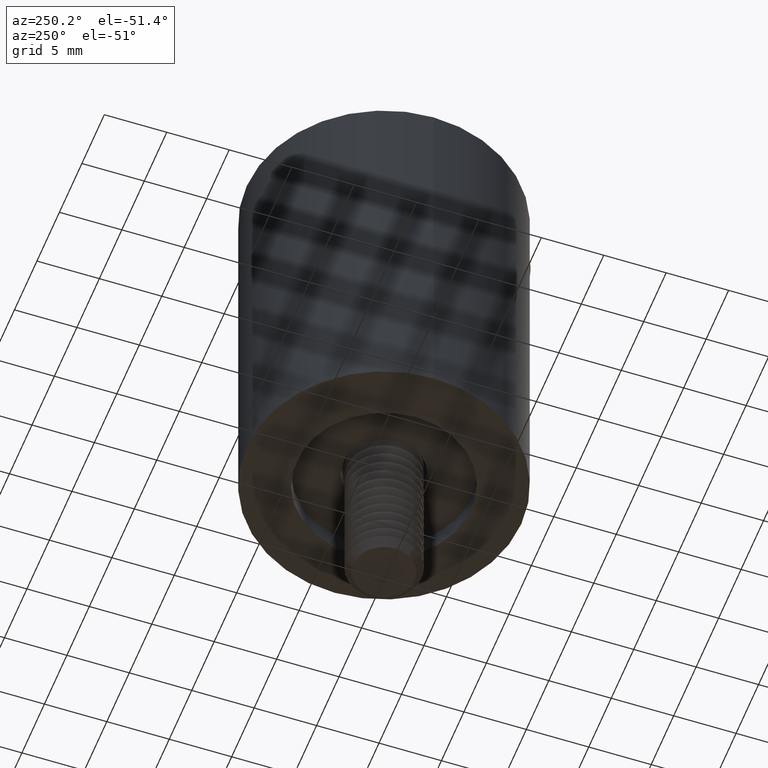
[diagram: clean part render]
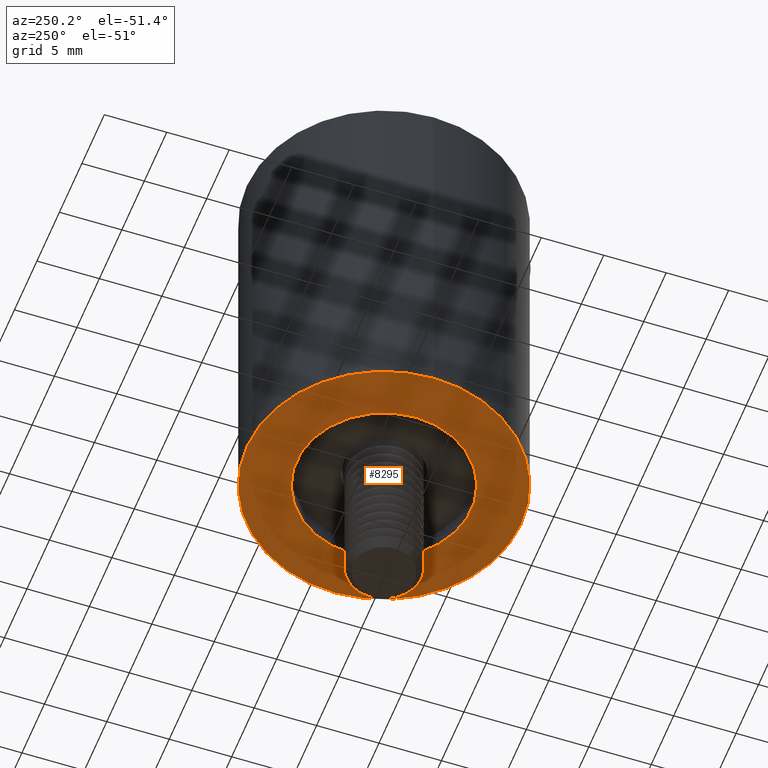
[diagram: same view with one face highlighted and labeled with its STEP entity id]
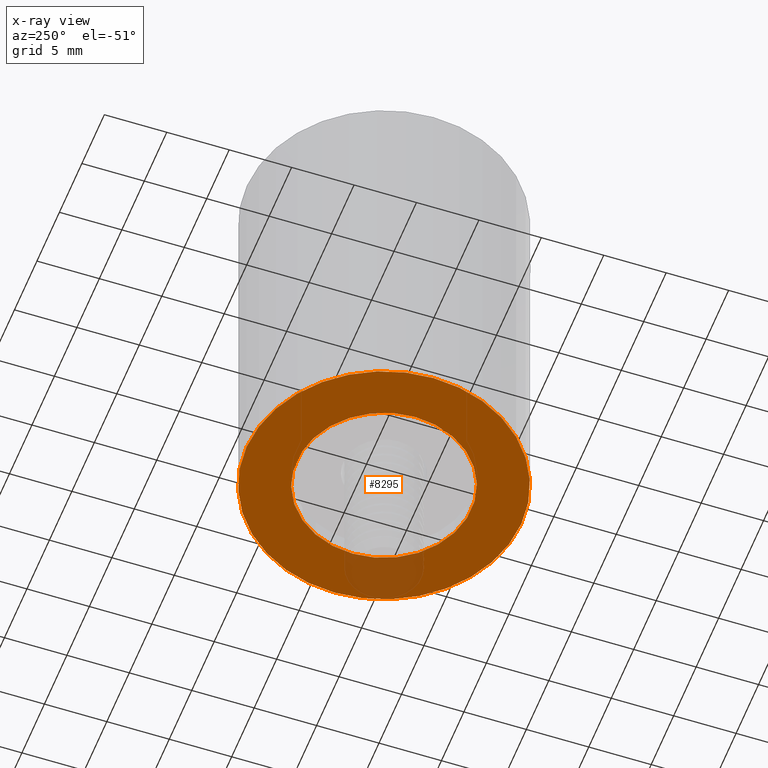
[diagram: x-ray of the same camera — body ghosted, the highlighted face saturated]
A machine part, auxiliary view. The second image highlights one B-rep face of the part: STEP entity #8295.
The next image is the same camera in x-ray: the body ghosted, the highlighted face saturated — about 9% of this face is hidden behind the body in this view.
In plain terms, the highlighted planar face has unit normal (0, 0, -1).
Its self-contained STEP definition (entity closure, byte-faithful):
#34 = DIRECTION ( 'NONE',  ( -1.000000000000000000, 0.000000000000000000, 0.000000000000000000 ) ) ;
#80 = PLANE ( 'NONE',  #8557 ) ;
#160 = DIRECTION ( 'NONE',  ( -1.000000000000000000, 0.000000000000000000, 0.000000000000000000 ) ) ;
#229 = DIRECTION ( 'NONE',  ( -0.000000000000000000, 0.000000000000000000, -1.000000000000000000 ) ) ;
#1234 = VERTEX_POINT ( 'NONE', #6656 ) ;
#1418 = VERTEX_POINT ( 'NONE', #16991 ) ;
#1471 = EDGE_LOOP ( 'NONE', ( #12914, #5791 ) ) ;
#2104 = DIRECTION ( 'NONE',  ( -1.000000000000000000, 0.000000000000000000, 0.000000000000000000 ) ) ;
#2699 = AXIS2_PLACEMENT_3D ( 'NONE', #5426, #12238, #2104 ) ;
#3367 = CIRCLE ( 'NONE', #8126, 6.999999999999999112 ) ;
#3567 = DIRECTION ( 'NONE',  ( -1.000000000000000000, 0.000000000000000000, 0.000000000000000000 ) ) ;
#3638 = CARTESIAN_POINT ( 'NONE',  ( 0.000000000000000000, 6.999999999999999112, 0.000000000000000000 ) ) ;
#3837 = CIRCLE ( 'NONE', #10111, 6.999999999999999112 ) ;
#5426 = CARTESIAN_POINT ( 'NONE',  ( 0.000000000000000000, 0.000000000000000000, 0.000000000000000000 ) ) ;
#5704 = CARTESIAN_POINT ( 'NONE',  ( -11.00000000000000000, 0.000000000000000000, 0.000000000000000000 ) ) ;
#5791 = ORIENTED_EDGE ( 'NONE', *, *, #16752, .F. ) ;
#6535 = AXIS2_PLACEMENT_3D ( 'NONE', #16805, #18503, #34 ) ;
#6592 = EDGE_CURVE ( 'NONE', #9026, #10372, #12061, .T. ) ;
#6656 = CARTESIAN_POINT ( 'NONE',  ( -6.999999999999999112, 0.000000000000000000, 0.000000000000000000 ) ) ;
#6900 = CARTESIAN_POINT ( 'NONE',  ( 0.000000000000000000, 0.000000000000000000, 0.000000000000000000 ) ) ;
#6970 = DIRECTION ( 'NONE',  ( -1.000000000000000000, 0.000000000000000000, 0.000000000000000000 ) ) ;
#7111 = DIRECTION ( 'NONE',  ( -0.000000000000000000, -0.000000000000000000, -1.000000000000000000 ) ) ;
#7738 = CARTESIAN_POINT ( 'NONE',  ( 10.99999999999999822, 1.347111479062088405E-15, 0.000000000000000000 ) ) ;
#7893 = EDGE_CURVE ( 'NONE', #1234, #1418, #3837, .T. ) ;
#8126 = AXIS2_PLACEMENT_3D ( 'NONE', #6900, #7111, #6970 ) ;
#8295 = ADVANCED_FACE ( 'NONE', ( #21532, #9667 ), #80, .T. ) ;
#8557 = AXIS2_PLACEMENT_3D ( 'NONE', #3638, #229, #3567 ) ;
#9026 = VERTEX_POINT ( 'NONE', #7738 ) ;
#9667 = FACE_BOUND ( 'NONE', #1471, .T. ) ;
#10111 = AXIS2_PLACEMENT_3D ( 'NONE', #18910, #20405, #160 ) ;
#10372 = VERTEX_POINT ( 'NONE', #5704 ) ;
#10558 = EDGE_LOOP ( 'NONE', ( #16445, #19221 ) ) ;
#12061 = CIRCLE ( 'NONE', #6535, 11.00000000000000000 ) ;
#12238 = DIRECTION ( 'NONE',  ( -0.000000000000000000, -0.000000000000000000, -1.000000000000000000 ) ) ;
#12536 = EDGE_CURVE ( 'NONE', #10372, #9026, #17955, .T. ) ;
#12914 = ORIENTED_EDGE ( 'NONE', *, *, #7893, .F. ) ;
#16445 = ORIENTED_EDGE ( 'NONE', *, *, #12536, .T. ) ;
#16752 = EDGE_CURVE ( 'NONE', #1418, #1234, #3367, .T. ) ;
#16805 = CARTESIAN_POINT ( 'NONE',  ( 0.000000000000000000, 0.000000000000000000, 0.000000000000000000 ) ) ;
#16991 = CARTESIAN_POINT ( 'NONE',  ( 6.999999999999999112, 8.572527594031472204E-16, 0.000000000000000000 ) ) ;
#17955 = CIRCLE ( 'NONE', #2699, 11.00000000000000000 ) ;
#18503 = DIRECTION ( 'NONE',  ( -0.000000000000000000, -0.000000000000000000, -1.000000000000000000 ) ) ;
#18910 = CARTESIAN_POINT ( 'NONE',  ( 0.000000000000000000, 0.000000000000000000, 0.000000000000000000 ) ) ;
#19221 = ORIENTED_EDGE ( 'NONE', *, *, #6592, .T. ) ;
#20405 = DIRECTION ( 'NONE',  ( -0.000000000000000000, -0.000000000000000000, -1.000000000000000000 ) ) ;
#21532 = FACE_OUTER_BOUND ( 'NONE', #10558, .T. ) ;